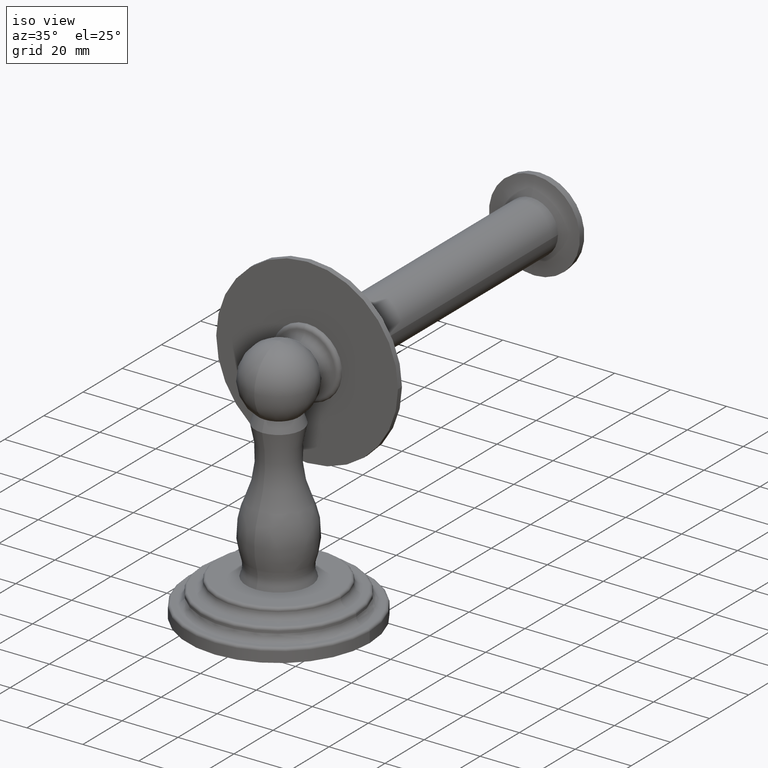
[diagram: clean part render]
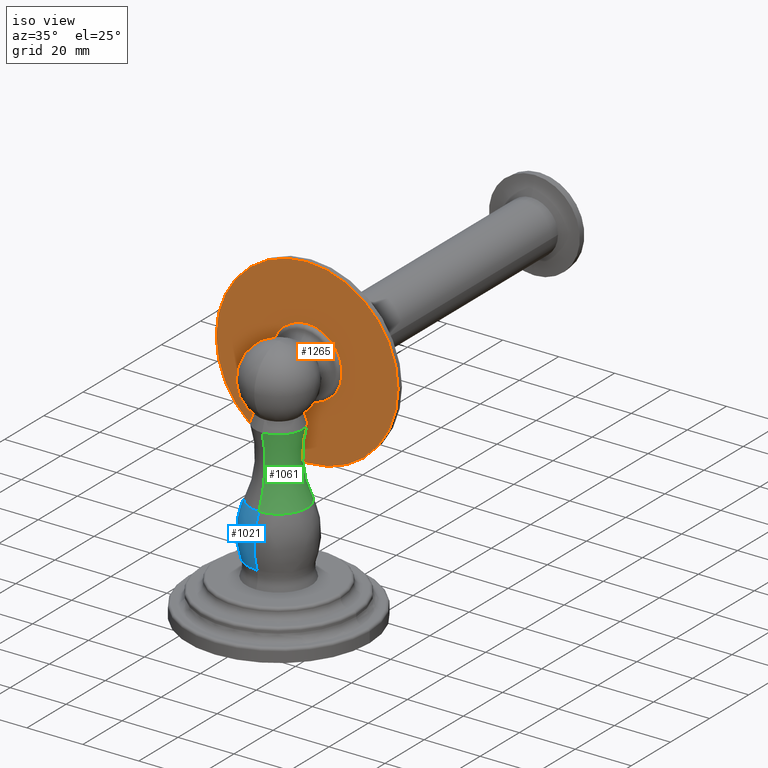
[diagram: same view with three faces highlighted in distinct colors, each labeled with its STEP entity id]
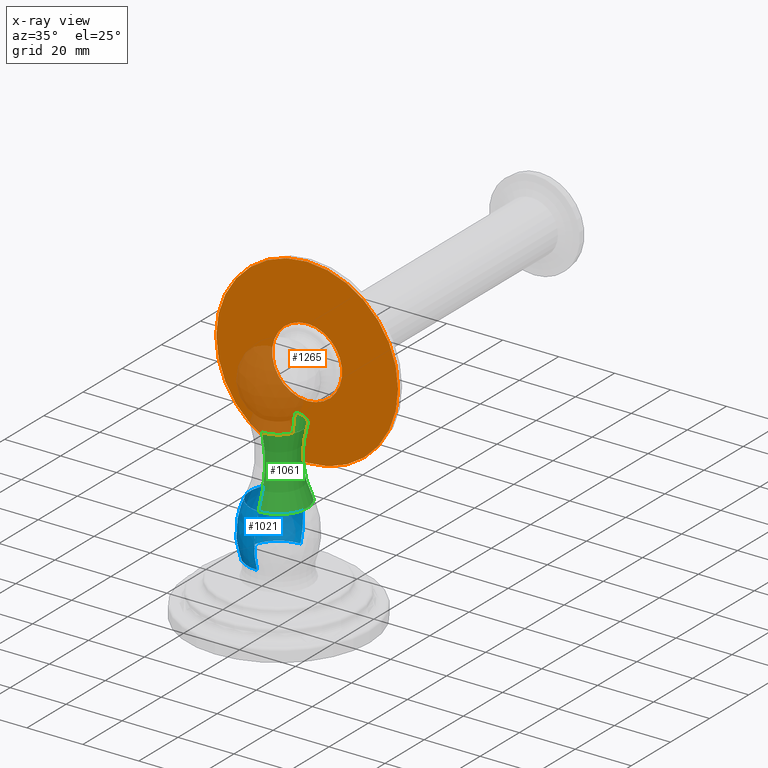
[diagram: x-ray of the same camera — body ghosted, the three highlighted faces saturated]
A machine part, iso view with three faces highlighted in distinct colors.
The next image is the same camera in x-ray (body ghosted, the three faces saturated) — at least one of them is partly hidden behind the body in this view.
Their STEP definitions:

[orange] entity #1265 — the highlighted planar face has unit normal (0, 1, 0).
#355=CARTESIAN_POINT('',(0.E0,5.71E-1,3.012E0));
#356=DIRECTION('',(0.E0,-1.E0,0.E0));
#357=DIRECTION('',(0.E0,0.E0,-1.E0));
#358=AXIS2_PLACEMENT_3D('',#355,#356,#357);
#365=CARTESIAN_POINT('',(0.E0,5.71E-1,3.012E0));
#366=DIRECTION('',(0.E0,1.E0,0.E0));
#367=DIRECTION('',(1.E0,0.E0,0.E0));
#368=AXIS2_PLACEMENT_3D('',#365,#366,#367);
#370=CARTESIAN_POINT('',(0.E0,5.71E-1,3.012E0));
#371=DIRECTION('',(0.E0,1.E0,0.E0));
#372=DIRECTION('',(-1.E0,0.E0,0.E0));
#373=AXIS2_PLACEMENT_3D('',#370,#371,#372);
#531=CARTESIAN_POINT('',(0.E0,5.71E-1,3.012E0));
#532=DIRECTION('',(0.E0,-1.E0,0.E0));
#533=DIRECTION('',(0.E0,0.E0,1.E0));
#534=AXIS2_PLACEMENT_3D('',#531,#532,#533);
#633=CARTESIAN_POINT('',(1.2795E0,5.71E-1,3.012E0));
#634=CARTESIAN_POINT('',(-1.2795E0,5.71E-1,3.012E0));
#635=VERTEX_POINT('',#633);
#636=VERTEX_POINT('',#634);
#641=CARTESIAN_POINT('',(0.E0,5.71E-1,2.52E0));
#642=CARTESIAN_POINT('',(0.E0,5.71E-1,3.504E0));
#643=VERTEX_POINT('',#641);
#644=VERTEX_POINT('',#642);
#1249=CARTESIAN_POINT('',(0.E0,5.71E-1,3.012E0));
#1250=DIRECTION('',(0.E0,1.E0,0.E0));
#1251=DIRECTION('',(1.E0,0.E0,0.E0));
#1252=AXIS2_PLACEMENT_3D('',#1249,#1250,#1251);
#1253=PLANE('',#1252);
#1255=ORIENTED_EDGE('',*,*,#1254,.T.);
#1257=ORIENTED_EDGE('',*,*,#1256,.T.);
#1258=EDGE_LOOP('',(#1255,#1257));
#1259=FACE_OUTER_BOUND('',#1258,.F.);
#1260=ORIENTED_EDGE('',*,*,#1239,.T.);
#1262=ORIENTED_EDGE('',*,*,#1261,.T.);
#1263=EDGE_LOOP('',(#1260,#1262));
#1264=FACE_BOUND('',#1263,.F.);
#1265=ADVANCED_FACE('',(#1259,#1264),#1253,.F.);
#359=CIRCLE('',#358,4.92E-1);
#369=CIRCLE('',#368,1.2795E0);
#374=CIRCLE('',#373,1.2795E0);
#535=CIRCLE('',#534,4.92E-1);
#1239=EDGE_CURVE('',#643,#644,#359,.T.);
#1254=EDGE_CURVE('',#635,#636,#369,.T.);
#1256=EDGE_CURVE('',#636,#635,#374,.T.);
#1261=EDGE_CURVE('',#644,#643,#535,.T.);

[blue] entity #1021 — the highlighted face is a freeform B-spline surface patch.
#206=CARTESIAN_POINT('',(0.E0,0.E0,7.562048526346E-1));
#207=DIRECTION('',(0.E0,0.E0,-1.E0));
#208=DIRECTION('',(0.E0,-1.E0,0.E0));
#209=AXIS2_PLACEMENT_3D('',#206,#207,#208);
#211=CARTESIAN_POINT('',(0.E0,-4.925E-1,1.073911406617E0));
#212=DIRECTION('',(1.E0,0.E0,0.E0));
#213=DIRECTION('',(0.E0,9.464424650068E-1,-3.228725142094E-1));
#214=AXIS2_PLACEMENT_3D('',#211,#212,#213);
#221=CARTESIAN_POINT('',(0.E0,4.925E-1,1.073911406617E0));
#222=DIRECTION('',(-1.E0,0.E0,0.E0));
#223=DIRECTION('',(0.E0,-9.464424650068E-1,-3.228725142094E-1));
#224=AXIS2_PLACEMENT_3D('',#221,#222,#223);
#236=CARTESIAN_POINT('',(0.E0,0.E0,1.485903471186E0));
#237=DIRECTION('',(0.E0,0.E0,-1.E0));
#238=DIRECTION('',(0.E0,-1.E0,0.E0));
#239=AXIS2_PLACEMENT_3D('',#236,#237,#238);
#595=CARTESIAN_POINT('',(0.E0,-4.010986452159E-1,1.485903471186E0));
#597=VERTEX_POINT('',#595);
#603=CARTESIAN_POINT('',(0.E0,4.387993855667E-1,7.562048526346E-1));
#604=CARTESIAN_POINT('',(0.E0,4.010986452159E-1,1.485903471186E0));
#605=VERTEX_POINT('',#603);
#606=VERTEX_POINT('',#604);
#615=CARTESIAN_POINT('',(0.E0,-4.387993855667E-1,7.562048526346E-1));
#616=VERTEX_POINT('',#615);
#995=CARTESIAN_POINT('',(0.E0,4.387993855667E-1,7.562048526346E-1));
#996=CARTESIAN_POINT('',(0.E0,5.213720744099E-1,9.982517774477E-1));
#997=CARTESIAN_POINT('',(0.E0,5.081763624591E-1,1.253655058438E0));
#998=CARTESIAN_POINT('',(0.E0,4.010986452159E-1,1.485903471186E0));
#999=CARTESIAN_POINT('',(-8.775987711333E-1,4.387993855667E-1,
7.562048526346E-1));
#1000=CARTESIAN_POINT('',(-1.042744148820E0,5.213720744099E-1,
9.982517774477E-1));
#1001=CARTESIAN_POINT('',(-1.016352724918E0,5.081763624591E-1,
1.253655058438E0));
#1002=CARTESIAN_POINT('',(-8.021972904318E-1,4.010986452159E-1,
1.485903471186E0));
#1003=CARTESIAN_POINT('',(-8.775987711333E-1,-4.387993855667E-1,
7.562048526346E-1));
#1004=CARTESIAN_POINT('',(-1.042744148820E0,-5.213720744099E-1,
9.982517774477E-1));
#1005=CARTESIAN_POINT('',(-1.016352724918E0,-5.081763624591E-1,
1.253655058438E0));
#1006=CARTESIAN_POINT('',(-8.021972904318E-1,-4.010986452159E-1,
1.485903471186E0));
#1007=CARTESIAN_POINT('',(0.E0,-4.387993855667E-1,7.562048526346E-1));
#1008=CARTESIAN_POINT('',(0.E0,-5.213720744099E-1,9.982517774477E-1));
#1009=CARTESIAN_POINT('',(0.E0,-5.081763624591E-1,1.253655058438E0));
#1010=CARTESIAN_POINT('',(0.E0,-4.010986452159E-1,1.485903471186E0));
#1011=(BOUNDED_SURFACE()B_SPLINE_SURFACE(3,3,((#995,#996,#997,#998),(#999,#1000,
#1001,#1002),(#1003,#1004,#1005,#1006),(#1007,#1008,#1009,#1010)),.UNSPECIFIED.,
.F.,.F.,.F.)B_SPLINE_SURFACE_WITH_KNOTS((4,4),(4,4),(0.E0,1.E0),(0.E0,1.E0),
.UNSPECIFIED.)GEOMETRIC_REPRESENTATION_ITEM()RATIONAL_B_SPLINE_SURFACE(((
2.074126797309E0,1.975291067564E0,1.975291067564E0,2.074126797309E0),(
6.913755991030E-1,6.584303558546E-1,6.584303558546E-1,6.913755991030E-1),(
6.913755991030E-1,6.584303558546E-1,6.584303558546E-1,6.913755991030E-1),(
2.074126797309E0,1.975291067564E0,1.975291067564E0,2.074126797309E0)))REPRESENTATION_ITEM('')SURFACE());
#1013=ORIENTED_EDGE('',*,*,#1012,.F.);
#1014=ORIENTED_EDGE('',*,*,#989,.T.);
#1016=ORIENTED_EDGE('',*,*,#1015,.T.);
#1018=ORIENTED_EDGE('',*,*,#1017,.F.);
#1019=EDGE_LOOP('',(#1013,#1014,#1016,#1018));
#1020=FACE_OUTER_BOUND('',#1019,.F.);
#1021=ADVANCED_FACE('',(#1020),#1011,.T.);
#210=CIRCLE('',#209,4.387993855667E-1);
#215=CIRCLE('',#214,9.84E-1);
#225=CIRCLE('',#224,9.84E-1);
#240=CIRCLE('',#239,4.010986452159E-1);
#989=EDGE_CURVE('',#616,#605,#210,.T.);
#1012=EDGE_CURVE('',#616,#597,#225,.T.);
#1015=EDGE_CURVE('',#605,#606,#215,.T.);
#1017=EDGE_CURVE('',#597,#606,#240,.T.);

[green] entity #1061 — the highlighted toroidal blend (fillet) surface has major radius 41.9735 mm and minor (blend) radius 35.0012 mm.
#226=CARTESIAN_POINT('',(0.E0,0.E0,1.485903471186E0));
#227=DIRECTION('',(0.E0,0.E0,1.E0));
#228=DIRECTION('',(0.E0,-1.E0,0.E0));
#229=AXIS2_PLACEMENT_3D('',#226,#227,#228);
#231=CARTESIAN_POINT('',(0.E0,-1.6525E0,2.062859838033E0));
#232=DIRECTION('',(1.E0,0.E0,0.E0));
#233=DIRECTION('',(0.E0,9.081287044877E-1,-4.186911225300E-1));
#234=AXIS2_PLACEMENT_3D('',#231,#232,#233);
#241=CARTESIAN_POINT('',(0.E0,1.6525E0,2.062859838033E0));
#242=DIRECTION('',(-1.E0,0.E0,0.E0));
#243=DIRECTION('',(0.E0,-9.081287044877E-1,-4.186911225300E-1));
#244=AXIS2_PLACEMENT_3D('',#241,#242,#243);
#259=CARTESIAN_POINT('',(0.E0,0.E0,2.460105039388E0));
#260=DIRECTION('',(0.E0,0.E0,1.E0));
#261=DIRECTION('',(0.E0,-1.E0,0.E0));
#262=AXIS2_PLACEMENT_3D('',#259,#260,#261);
#595=CARTESIAN_POINT('',(0.E0,-4.010986452159E-1,1.485903471186E0));
#596=CARTESIAN_POINT('',(0.E0,-3.33E-1,2.460105039388E0));
#597=VERTEX_POINT('',#595);
#598=VERTEX_POINT('',#596);
#604=CARTESIAN_POINT('',(0.E0,4.010986452159E-1,1.485903471186E0));
#606=VERTEX_POINT('',#604);
#607=CARTESIAN_POINT('',(0.E0,3.33E-1,2.460105039388E0));
#608=VERTEX_POINT('',#607);
#1047=CARTESIAN_POINT('',(0.E0,0.E0,2.062859838033E0));
#1048=DIRECTION('',(0.E0,0.E0,1.E0));
#1049=DIRECTION('',(0.E0,-1.E0,0.E0));
#1050=AXIS2_PLACEMENT_3D('',#1047,#1048,#1049);
#1051=TOROIDAL_SURFACE('',#1050,1.6525E0,1.378E0);
#1053=ORIENTED_EDGE('',*,*,#1052,.T.);
#1055=ORIENTED_EDGE('',*,*,#1054,.T.);
#1057=ORIENTED_EDGE('',*,*,#1056,.F.);
#1058=ORIENTED_EDGE('',*,*,#1041,.F.);
#1059=EDGE_LOOP('',(#1053,#1055,#1057,#1058));
#1060=FACE_OUTER_BOUND('',#1059,.F.);
#1061=ADVANCED_FACE('',(#1060),#1051,.F.);
#230=CIRCLE('',#229,4.010986452159E-1);
#235=CIRCLE('',#234,1.378E0);
#245=CIRCLE('',#244,1.378E0);
#263=CIRCLE('',#262,3.33E-1);
#1041=EDGE_CURVE('',#597,#606,#230,.T.);
#1052=EDGE_CURVE('',#597,#598,#235,.T.);
#1054=EDGE_CURVE('',#598,#608,#263,.T.);
#1056=EDGE_CURVE('',#606,#608,#245,.T.);